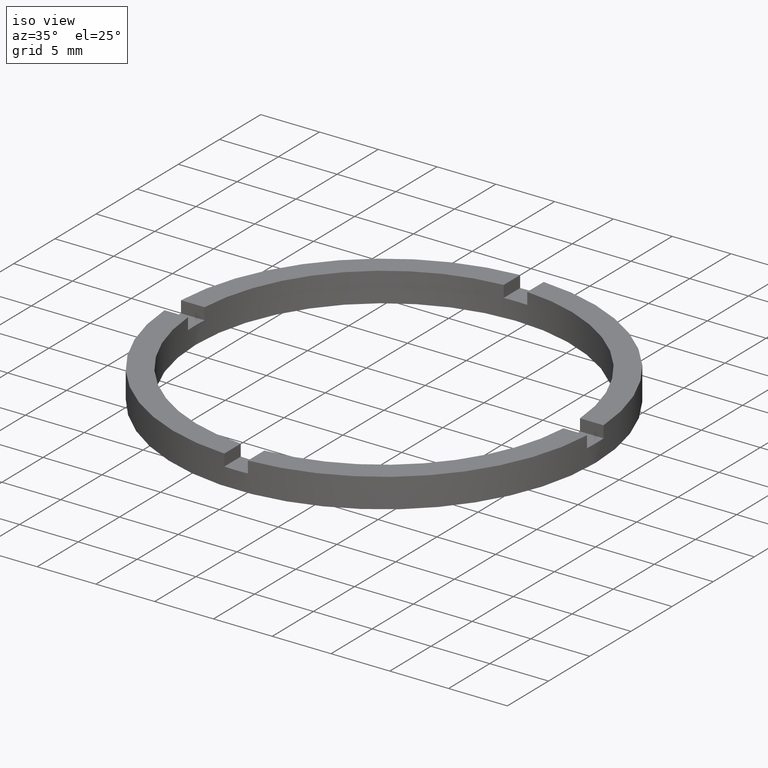
[diagram: clean part render]
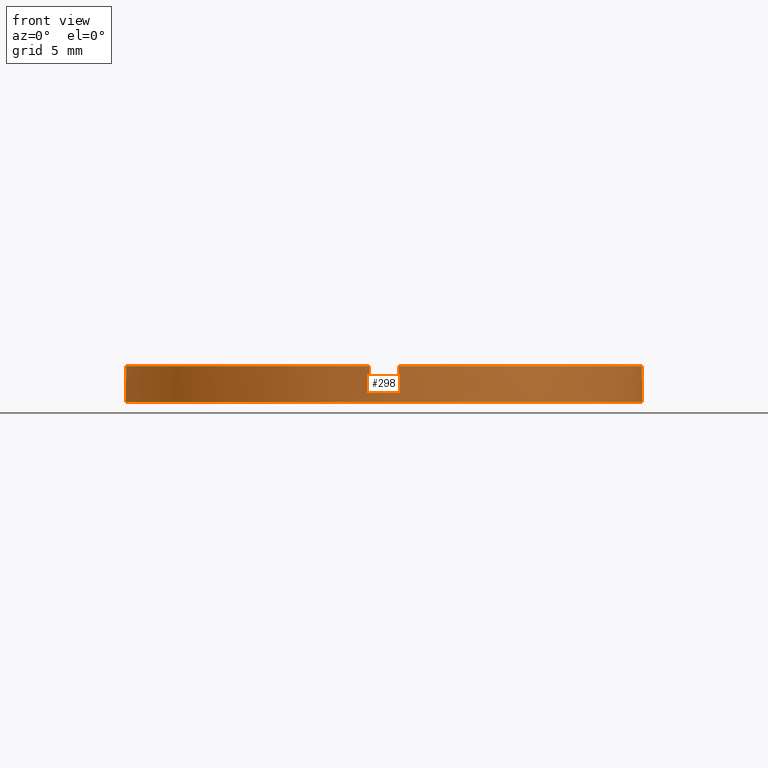
[diagram: tour spotlight — one face highlighted and labeled with its STEP entity id]
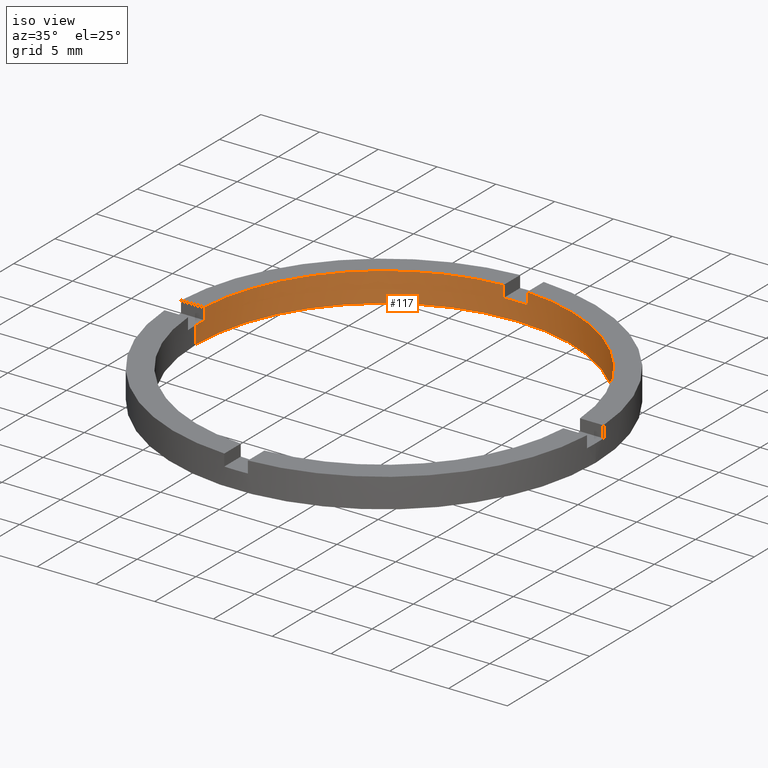
[diagram: tour spotlight — one face highlighted and labeled with its STEP entity id]
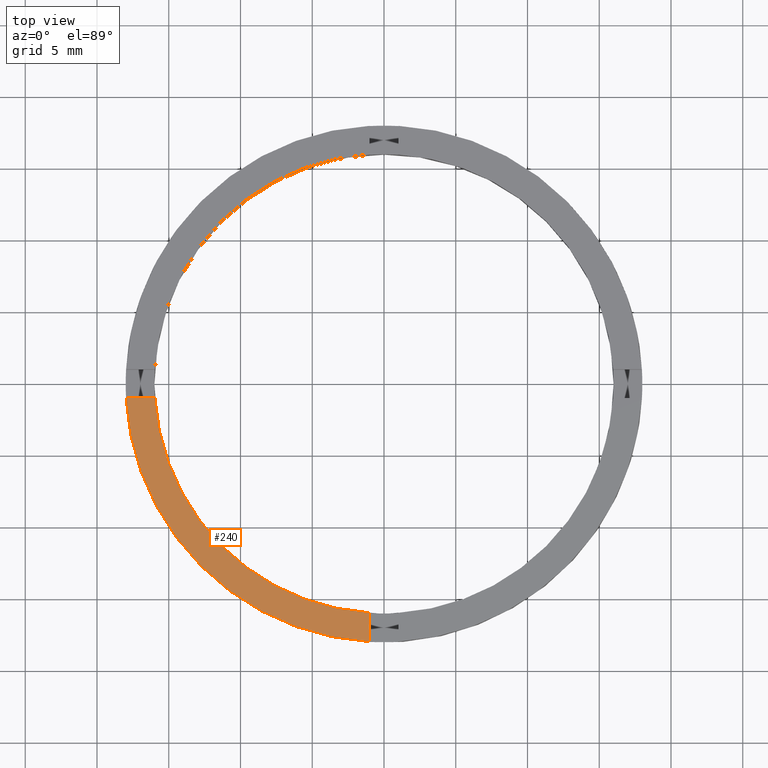
[diagram: tour spotlight — one face highlighted and labeled with its STEP entity id]
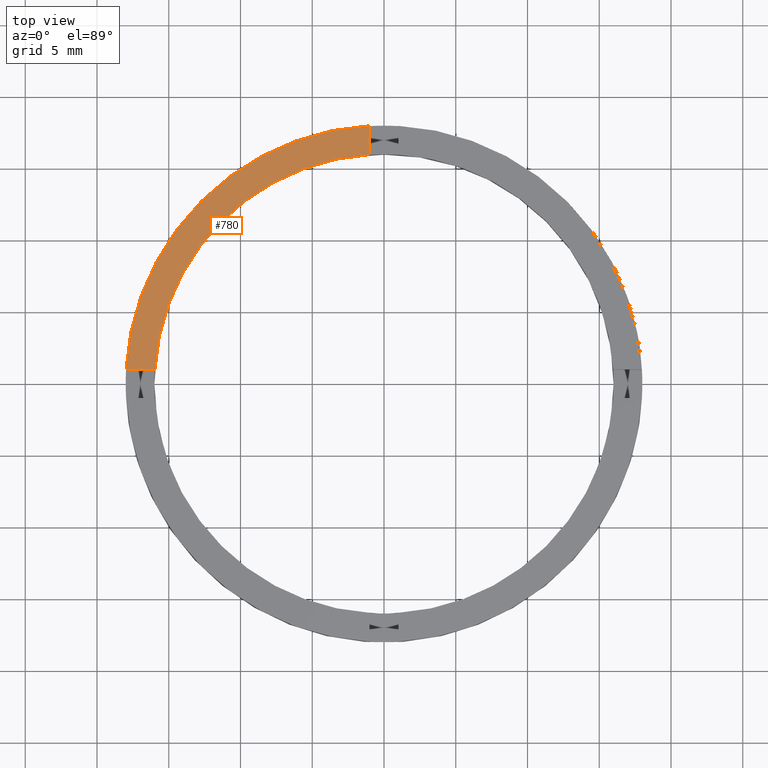
[diagram: tour spotlight — one face highlighted and labeled with its STEP entity id]
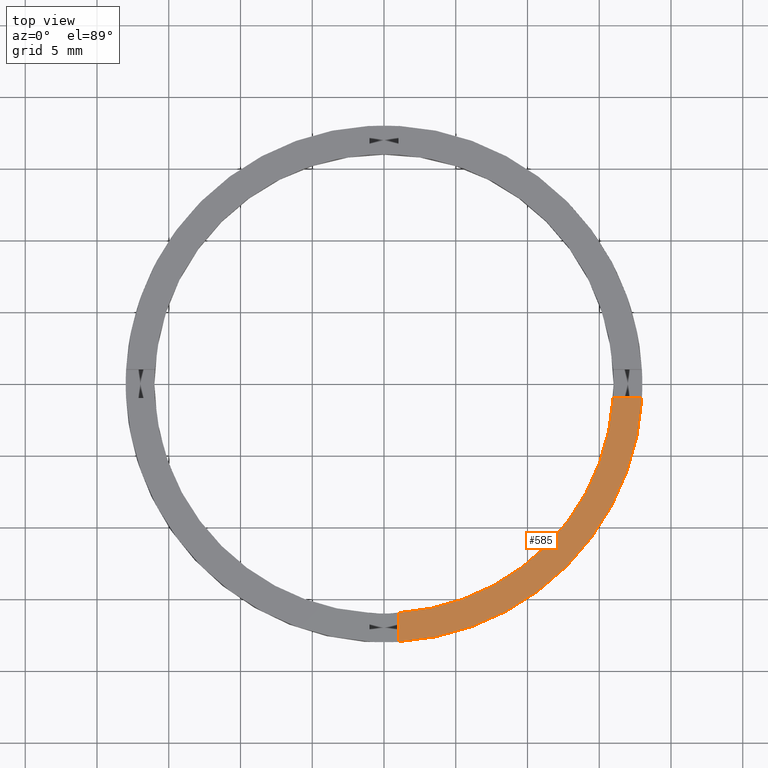
[diagram: tour spotlight — one face highlighted and labeled with its STEP entity id]
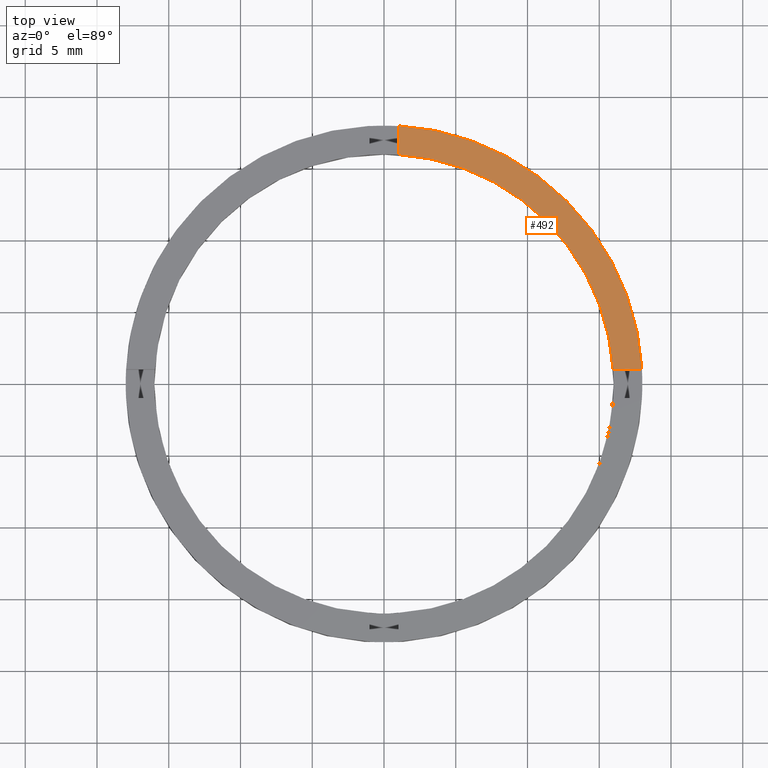
[diagram: tour spotlight — one face highlighted and labeled with its STEP entity id]
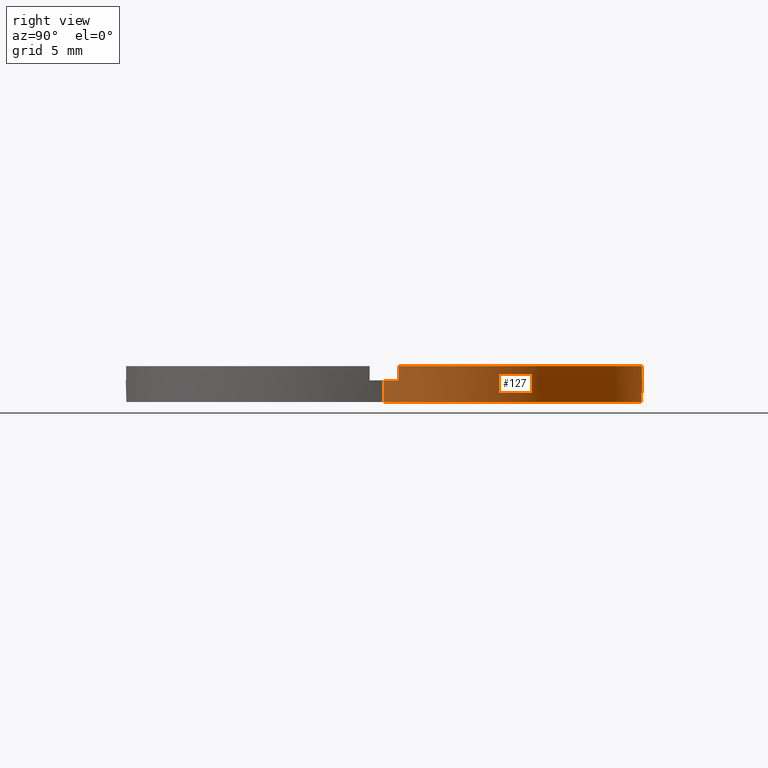
[diagram: tour spotlight — one face highlighted and labeled with its STEP entity id]
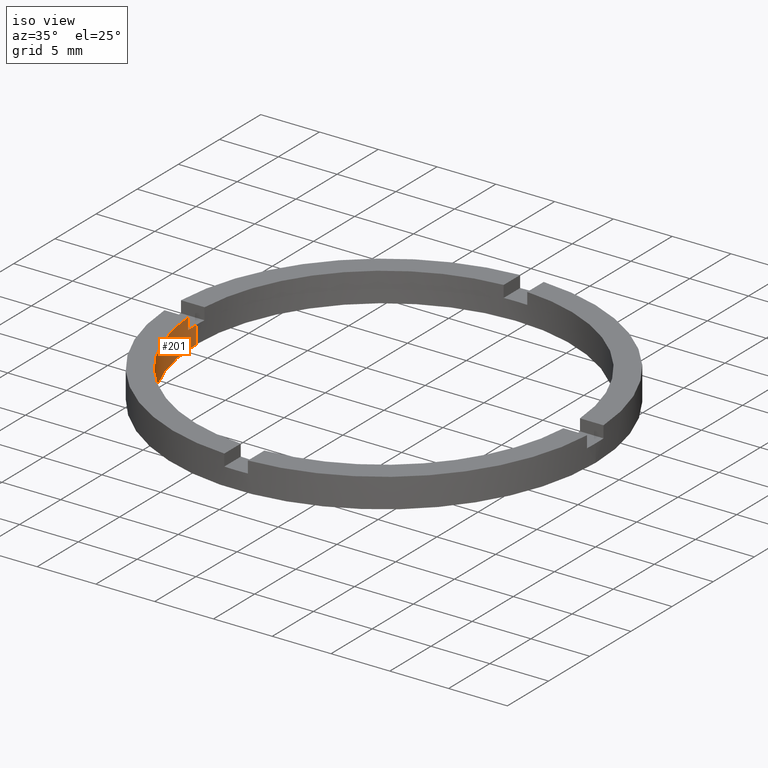
[diagram: tour spotlight — one face highlighted and labeled with its STEP entity id]
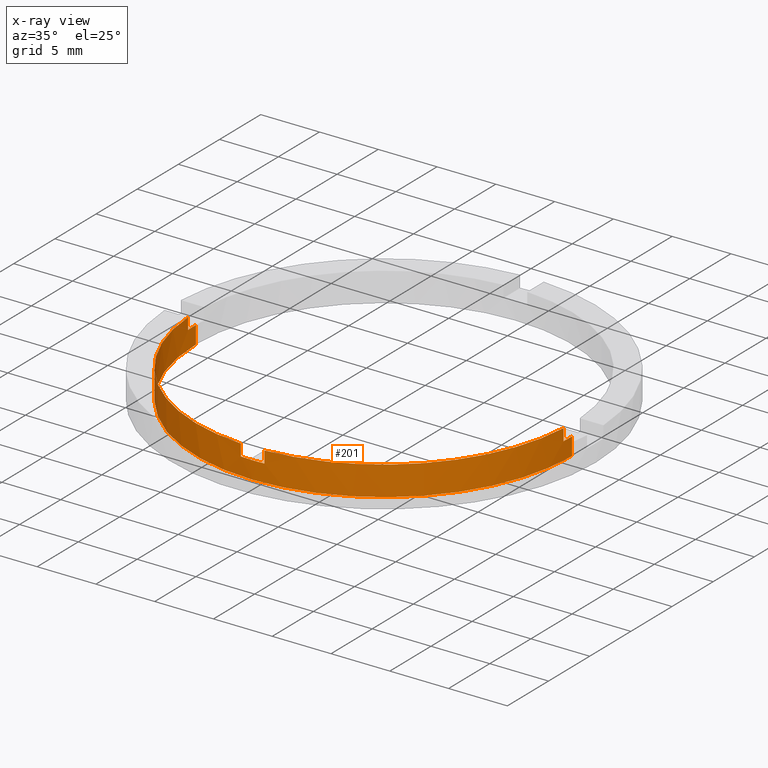
[diagram: x-ray of the same camera — body ghosted, this tour face saturated]
A machine part: a face-by-face anatomy tour. The part has 21 B-rep faces; the first image is the clean iso view, then the 8 largest visible faces are spotlighted one at a time (largest first), each with its STEP entity span.

Face 1 — front view, entity #298. In plain terms, the highlighted cylindrical surface (partial cylindrical patch) has radius 18 mm, axis along (-0, -0, -1).
Definition (entity closure, byte-faithful):
#1 = DIRECTION ( 'NONE',  ( 1.000000000000000000, 0.000000000000000000, 0.000000000000000000 ) ) ;
#9 = VERTEX_POINT ( 'NONE', #676 ) ;
#34 = EDGE_CURVE ( 'NONE', #514, #103, #307, .T. ) ;
#36 = CARTESIAN_POINT ( 'NONE',  ( 17.97220075561141783, -1.000000000000158762, 2.500000000000000000 ) ) ;
#45 = DIRECTION ( 'NONE',  ( -0.000000000000000000, -0.000000000000000000, -1.000000000000000000 ) ) ;
#46 = CIRCLE ( 'NONE', #409, 18.00000000000000000 ) ;
#51 = LINE ( 'NONE', #644, #561 ) ;
#53 = AXIS2_PLACEMENT_3D ( 'NONE', #665, #592, #1 ) ;
#57 = LINE ( 'NONE', #451, #322 ) ;
#63 = DIRECTION ( 'NONE',  ( 0.000000000000000000, 0.000000000000000000, 1.000000000000000000 ) ) ;
#64 = CARTESIAN_POINT ( 'NONE',  ( 0.000000000000000000, 0.000000000000000000, 2.500000000000000000 ) ) ;
#73 = VECTOR ( 'NONE', #423, 1000.000000000000000 ) ;
#75 = DIRECTION ( 'NONE',  ( -0.000000000000000000, 0.000000000000000000, 1.000000000000000000 ) ) ;
#85 = CIRCLE ( 'NONE', #53, 18.00000000000000000 ) ;
#102 = EDGE_CURVE ( 'NONE', #383, #215, #46, .T. ) ;
#103 = VERTEX_POINT ( 'NONE', #767 ) ;
#132 = ORIENTED_EDGE ( 'NONE', *, *, #34, .F. ) ;
#135 = VERTEX_POINT ( 'NONE', #36 ) ;
#161 = CARTESIAN_POINT ( 'NONE',  ( 18.00000000000000000, 2.204364238465235428E-15, 2.500000000000000000 ) ) ;
#182 = VERTEX_POINT ( 'NONE', #776 ) ;
#187 = ORIENTED_EDGE ( 'NONE', *, *, #287, .F. ) ;
#191 = ORIENTED_EDGE ( 'NONE', *, *, #305, .T. ) ;
#200 = CARTESIAN_POINT ( 'NONE',  ( -18.00000000000000000, 0.000000000000000000, 0.000000000000000000 ) ) ;
#207 = ORIENTED_EDGE ( 'NONE', *, *, #102, .T. ) ;
#215 = VERTEX_POINT ( 'NONE', #535 ) ;
#226 = EDGE_CURVE ( 'NONE', #369, #782, #302, .T. ) ;
#230 = DIRECTION ( 'NONE',  ( -0.000000000000000000, -0.000000000000000000, -1.000000000000000000 ) ) ;
#231 = CARTESIAN_POINT ( 'NONE',  ( -17.97220075561142849, -1.000000000000023981, 2.500000000000000000 ) ) ;
#241 = EDGE_CURVE ( 'NONE', #725, #782, #546, .T. ) ;
#261 = DIRECTION ( 'NONE',  ( -0.000000000000000000, -0.000000000000000000, -1.000000000000000000 ) ) ;
#271 = EDGE_CURVE ( 'NONE', #512, #215, #303, .T. ) ;
#273 = CARTESIAN_POINT ( 'NONE',  ( -17.97220075561142849, -1.000000000000023981, 1.500000000000000000 ) ) ;
#276 = CARTESIAN_POINT ( 'NONE',  ( 17.97220075561141783, -1.000000000000158762, 2.500000000000000000 ) ) ;
#287 = EDGE_CURVE ( 'NONE', #182, #135, #548, .T. ) ;
#293 = VECTOR ( 'NONE', #230, 1000.000000000000000 ) ;
#298 = ADVANCED_FACE ( 'NONE', ( #551 ), #566, .T. ) ;
#302 = CIRCLE ( 'NONE', #330, 18.00000000000000000 ) ;
#303 = LINE ( 'NONE', #161, #293 ) ;
#305 = EDGE_CURVE ( 'NONE', #182, #103, #51, .T. ) ;
#307 = CIRCLE ( 'NONE', #783, 18.00000000000000000 ) ;
#320 = LINE ( 'NONE', #530, #590 ) ;
#321 = DIRECTION ( 'NONE',  ( 0.000000000000000000, 0.000000000000000000, 1.000000000000000000 ) ) ;
#322 = VECTOR ( 'NONE', #321, 1000.000000000000000 ) ;
#330 = AXIS2_PLACEMENT_3D ( 'NONE', #449, #63, #498 ) ;
#335 = CARTESIAN_POINT ( 'NONE',  ( -17.97220075561142849, -1.000000000000023981, 2.500000000000000000 ) ) ;
#348 = CARTESIAN_POINT ( 'NONE',  ( 0.000000000000000000, 0.000000000000000000, 0.000000000000000000 ) ) ;
#369 = VERTEX_POINT ( 'NONE', #429 ) ;
#380 = ORIENTED_EDGE ( 'NONE', *, *, #736, .F. ) ;
#383 = VERTEX_POINT ( 'NONE', #200 ) ;
#394 = CARTESIAN_POINT ( 'NONE',  ( 0.000000000000000000, 0.000000000000000000, 2.500000000000000000 ) ) ;
#409 = AXIS2_PLACEMENT_3D ( 'NONE', #348, #412, #415 ) ;
#410 = EDGE_CURVE ( 'NONE', #454, #135, #589, .T. ) ;
#412 = DIRECTION ( 'NONE',  ( 0.000000000000000000, 0.000000000000000000, 1.000000000000000000 ) ) ;
#415 = DIRECTION ( 'NONE',  ( 1.000000000000000000, 0.000000000000000000, 0.000000000000000000 ) ) ;
#419 = AXIS2_PLACEMENT_3D ( 'NONE', #773, #45, #573 ) ;
#423 = DIRECTION ( 'NONE',  ( 0.000000000000000000, 0.000000000000000000, 1.000000000000000000 ) ) ;
#427 = DIRECTION ( 'NONE',  ( 0.000000000000000000, 0.000000000000000000, 1.000000000000000000 ) ) ;
#429 = CARTESIAN_POINT ( 'NONE',  ( -18.00000000000000000, 0.000000000000000000, 1.500000000000000000 ) ) ;
#439 = EDGE_CURVE ( 'NONE', #369, #383, #320, .T. ) ;
#449 = CARTESIAN_POINT ( 'NONE',  ( 0.000000000000000000, 0.000000000000000000, 1.500000000000000000 ) ) ;
#451 = CARTESIAN_POINT ( 'NONE',  ( -1.000000000000162315, -17.97220075561141783, 2.500000000000000000 ) ) ;
#454 = VERTEX_POINT ( 'NONE', #753 ) ;
#458 = CARTESIAN_POINT ( 'NONE',  ( -1.000000000000161871, -17.97220075561141428, 1.500000000000000000 ) ) ;
#467 = DIRECTION ( 'NONE',  ( 0.000000000000000000, 0.000000000000000000, 1.000000000000000000 ) ) ;
#485 = EDGE_CURVE ( 'NONE', #514, #9, #57, .T. ) ;
#498 = DIRECTION ( 'NONE',  ( 1.000000000000000000, 0.000000000000000000, 0.000000000000000000 ) ) ;
#502 = CARTESIAN_POINT ( 'NONE',  ( 18.00000000000000000, 2.204364238465235428E-15, 1.500000000000000000 ) ) ;
#503 = DIRECTION ( 'NONE',  ( -0.000000000000000000, -0.000000000000000000, -1.000000000000000000 ) ) ;
#508 = DIRECTION ( 'NONE',  ( 1.000000000000000000, 0.000000000000000000, 0.000000000000000000 ) ) ;
#512 = VERTEX_POINT ( 'NONE', #502 ) ;
#514 = VERTEX_POINT ( 'NONE', #458 ) ;
#529 = EDGE_CURVE ( 'NONE', #725, #9, #624, .T. ) ;
#530 = CARTESIAN_POINT ( 'NONE',  ( -18.00000000000000000, 0.000000000000000000, 2.500000000000000000 ) ) ;
#533 = VECTOR ( 'NONE', #261, 1000.000000000000000 ) ;
#535 = CARTESIAN_POINT ( 'NONE',  ( 18.00000000000000000, 2.204364238465235428E-15, 0.000000000000000000 ) ) ;
#543 = DIRECTION ( 'NONE',  ( 1.000000000000000000, 0.000000000000000000, 0.000000000000000000 ) ) ;
#546 = LINE ( 'NONE', #335, #533 ) ;
#548 = CIRCLE ( 'NONE', #766, 18.00000000000000000 ) ;
#551 = FACE_OUTER_BOUND ( 'NONE', #723, .T. ) ;
#561 = VECTOR ( 'NONE', #718, 1000.000000000000000 ) ;
#566 = CYLINDRICAL_SURFACE ( 'NONE', #419, 18.00000000000000000 ) ;
#573 = DIRECTION ( 'NONE',  ( -1.000000000000000000, 0.000000000000000000, 0.000000000000000000 ) ) ;
#589 = LINE ( 'NONE', #276, #73 ) ;
#590 = VECTOR ( 'NONE', #503, 1000.000000000000000 ) ;
#592 = DIRECTION ( 'NONE',  ( 0.000000000000000000, 0.000000000000000000, 1.000000000000000000 ) ) ;
#620 = ORIENTED_EDGE ( 'NONE', *, *, #410, .T. ) ;
#624 = CIRCLE ( 'NONE', #744, 18.00000000000000000 ) ;
#625 = ORIENTED_EDGE ( 'NONE', *, *, #439, .T. ) ;
#626 = ORIENTED_EDGE ( 'NONE', *, *, #485, .T. ) ;
#639 = ORIENTED_EDGE ( 'NONE', *, *, #271, .F. ) ;
#640 = ORIENTED_EDGE ( 'NONE', *, *, #241, .T. ) ;
#644 = CARTESIAN_POINT ( 'NONE',  ( 0.9999999999998377964, -17.97220075561143915, 2.500000000000000000 ) ) ;
#661 = ORIENTED_EDGE ( 'NONE', *, *, #226, .F. ) ;
#665 = CARTESIAN_POINT ( 'NONE',  ( 0.000000000000000000, 0.000000000000000000, 1.500000000000000000 ) ) ;
#676 = CARTESIAN_POINT ( 'NONE',  ( -1.000000000000161871, -17.97220075561141428, 2.500000000000000000 ) ) ;
#698 = ORIENTED_EDGE ( 'NONE', *, *, #529, .F. ) ;
#718 = DIRECTION ( 'NONE',  ( -0.000000000000000000, -0.000000000000000000, -1.000000000000000000 ) ) ;
#723 = EDGE_LOOP ( 'NONE', ( #639, #380, #620, #187, #191, #132, #626, #698, #640, #661, #625, #207 ) ) ;
#725 = VERTEX_POINT ( 'NONE', #231 ) ;
#736 = EDGE_CURVE ( 'NONE', #454, #512, #85, .T. ) ;
#744 = AXIS2_PLACEMENT_3D ( 'NONE', #64, #427, #543 ) ;
#749 = DIRECTION ( 'NONE',  ( 1.000000000000000000, 0.000000000000000000, 0.000000000000000000 ) ) ;
#753 = CARTESIAN_POINT ( 'NONE',  ( 17.97220075561141783, -1.000000000000158762, 1.500000000000000000 ) ) ;
#755 = CARTESIAN_POINT ( 'NONE',  ( 0.000000000000000000, 0.000000000000000000, 1.500000000000000000 ) ) ;
#766 = AXIS2_PLACEMENT_3D ( 'NONE', #394, #467, #508 ) ;
#767 = CARTESIAN_POINT ( 'NONE',  ( 0.9999999999998373523, -17.97220075561143560, 1.500000000000000000 ) ) ;
#773 = CARTESIAN_POINT ( 'NONE',  ( 0.000000000000000000, 0.000000000000000000, 2.500000000000000000 ) ) ;
#776 = CARTESIAN_POINT ( 'NONE',  ( 0.9999999999998373523, -17.97220075561143560, 2.500000000000000000 ) ) ;
#782 = VERTEX_POINT ( 'NONE', #273 ) ;
#783 = AXIS2_PLACEMENT_3D ( 'NONE', #755, #75, #749 ) ;

Face 2 — iso view, entity #117. In plain terms, the highlighted cylindrical surface (partial cylindrical patch) has radius 16 mm, axis along (-0, -0, -1).
Definition (entity closure, byte-faithful):
#5 = CARTESIAN_POINT ( 'NONE',  ( 16.00000000000000000, 1.959434878635765131E-15, 0.000000000000000000 ) ) ;
#10 = DIRECTION ( 'NONE',  ( -0.000000000000000000, -0.000000000000000000, -1.000000000000000000 ) ) ;
#12 = DIRECTION ( 'NONE',  ( 0.000000000000000000, 0.000000000000000000, 1.000000000000000000 ) ) ;
#13 = EDGE_CURVE ( 'NONE', #641, #401, #542, .T. ) ;
#16 = VECTOR ( 'NONE', #223, 1000.000000000000000 ) ;
#28 = LINE ( 'NONE', #386, #16 ) ;
#40 = CIRCLE ( 'NONE', #87, 16.00000000000000000 ) ;
#41 = DIRECTION ( 'NONE',  ( 1.000000000000000000, 0.000000000000000000, 0.000000000000000000 ) ) ;
#55 = DIRECTION ( 'NONE',  ( -0.000000000000000000, -0.000000000000000000, -1.000000000000000000 ) ) ;
#61 = CARTESIAN_POINT ( 'NONE',  ( -1.000000000000024869, 15.96871942267130606, 1.500000000000000000 ) ) ;
#70 = CARTESIAN_POINT ( 'NONE',  ( 0.000000000000000000, 0.000000000000000000, 1.500000000000000000 ) ) ;
#74 = CARTESIAN_POINT ( 'NONE',  ( 0.9999999999999742428, 15.96871942267130962, 2.500000000000000000 ) ) ;
#87 = AXIS2_PLACEMENT_3D ( 'NONE', #490, #655, #232 ) ;
#97 = CARTESIAN_POINT ( 'NONE',  ( 15.96871942267132027, 0.9999999999998411271, 2.500000000000000000 ) ) ;
#98 = CARTESIAN_POINT ( 'NONE',  ( 15.96871942267132027, 0.9999999999998411271, 1.500000000000000000 ) ) ;
#101 = EDGE_CURVE ( 'NONE', #167, #509, #538, .T. ) ;
#105 = LINE ( 'NONE', #553, #603 ) ;
#112 = EDGE_CURVE ( 'NONE', #525, #629, #534, .T. ) ;
#117 = ADVANCED_FACE ( 'NONE', ( #544 ), #290, .F. ) ;
#120 = ORIENTED_EDGE ( 'NONE', *, *, #507, .F. ) ;
#128 = ORIENTED_EDGE ( 'NONE', *, *, #395, .T. ) ;
#130 = CARTESIAN_POINT ( 'NONE',  ( 0.000000000000000000, 0.000000000000000000, 1.500000000000000000 ) ) ;
#134 = VERTEX_POINT ( 'NONE', #647 ) ;
#157 = AXIS2_PLACEMENT_3D ( 'NONE', #269, #295, #41 ) ;
#167 = VERTEX_POINT ( 'NONE', #97 ) ;
#168 = EDGE_CURVE ( 'NONE', #134, #475, #40, .T. ) ;
#170 = ORIENTED_EDGE ( 'NONE', *, *, #13, .T. ) ;
#172 = CARTESIAN_POINT ( 'NONE',  ( -15.96871942267131317, 0.9999999999999763522, 2.500000000000000000 ) ) ;
#189 = ORIENTED_EDGE ( 'NONE', *, *, #565, .F. ) ;
#196 = CARTESIAN_POINT ( 'NONE',  ( 0.000000000000000000, 0.000000000000000000, 0.000000000000000000 ) ) ;
#217 = VERTEX_POINT ( 'NONE', #437 ) ;
#220 = AXIS2_PLACEMENT_3D ( 'NONE', #196, #528, #672 ) ;
#221 = ORIENTED_EDGE ( 'NONE', *, *, #168, .T. ) ;
#223 = DIRECTION ( 'NONE',  ( -0.000000000000000000, -0.000000000000000000, -1.000000000000000000 ) ) ;
#232 = DIRECTION ( 'NONE',  ( 1.000000000000000000, 0.000000000000000000, 0.000000000000000000 ) ) ;
#234 = DIRECTION ( 'NONE',  ( 0.000000000000000000, 0.000000000000000000, 1.000000000000000000 ) ) ;
#236 = DIRECTION ( 'NONE',  ( 0.000000000000000000, 0.000000000000000000, 1.000000000000000000 ) ) ;
#258 = CARTESIAN_POINT ( 'NONE',  ( -1.000000000000025313, 15.96871942267130962, 2.500000000000000000 ) ) ;
#262 = EDGE_CURVE ( 'NONE', #167, #401, #28, .T. ) ;
#269 = CARTESIAN_POINT ( 'NONE',  ( 0.000000000000000000, 0.000000000000000000, 1.500000000000000000 ) ) ;
#288 = DIRECTION ( 'NONE',  ( -0.000000000000000000, -0.000000000000000000, -1.000000000000000000 ) ) ;
#290 = CYLINDRICAL_SURFACE ( 'NONE', #352, 16.00000000000000000 ) ;
#295 = DIRECTION ( 'NONE',  ( 0.000000000000000000, -0.000000000000000000, 1.000000000000000000 ) ) ;
#296 = AXIS2_PLACEMENT_3D ( 'NONE', #130, #236, #349 ) ;
#317 = VECTOR ( 'NONE', #234, 1000.000000000000000 ) ;
#327 = LINE ( 'NONE', #258, #578 ) ;
#329 = CIRCLE ( 'NONE', #296, 16.00000000000000000 ) ;
#334 = EDGE_CURVE ( 'NONE', #719, #475, #562, .T. ) ;
#344 = VECTOR ( 'NONE', #10, 1000.000000000000000 ) ;
#349 = DIRECTION ( 'NONE',  ( 1.000000000000000000, 0.000000000000000000, 0.000000000000000000 ) ) ;
#352 = AXIS2_PLACEMENT_3D ( 'NONE', #738, #288, #426 ) ;
#373 = CARTESIAN_POINT ( 'NONE',  ( -16.00000000000000000, 0.000000000000000000, 2.500000000000000000 ) ) ;
#377 = DIRECTION ( 'NONE',  ( -0.000000000000000000, -0.000000000000000000, -1.000000000000000000 ) ) ;
#386 = CARTESIAN_POINT ( 'NONE',  ( 15.96871942267132027, 0.9999999999998411271, 2.500000000000000000 ) ) ;
#392 = ORIENTED_EDGE ( 'NONE', *, *, #575, .T. ) ;
#395 = EDGE_CURVE ( 'NONE', #719, #516, #329, .T. ) ;
#399 = VECTOR ( 'NONE', #55, 1000.000000000000000 ) ;
#401 = VERTEX_POINT ( 'NONE', #98 ) ;
#404 = EDGE_LOOP ( 'NONE', ( #634, #170, #633, #483, #189, #479, #120, #221, #691, #128, #392, #478 ) ) ;
#426 = DIRECTION ( 'NONE',  ( -1.000000000000000000, 0.000000000000000000, 0.000000000000000000 ) ) ;
#437 = CARTESIAN_POINT ( 'NONE',  ( -16.00000000000000000, 0.000000000000000000, 0.000000000000000000 ) ) ;
#475 = VERTEX_POINT ( 'NONE', #748 ) ;
#478 = ORIENTED_EDGE ( 'NONE', *, *, #759, .F. ) ;
#479 = ORIENTED_EDGE ( 'NONE', *, *, #112, .T. ) ;
#483 = ORIENTED_EDGE ( 'NONE', *, *, #101, .T. ) ;
#490 = CARTESIAN_POINT ( 'NONE',  ( 0.000000000000000000, 0.000000000000000000, 2.500000000000000000 ) ) ;
#499 = CARTESIAN_POINT ( 'NONE',  ( 0.9999999999999742428, 15.96871942267130962, 1.500000000000000000 ) ) ;
#507 = EDGE_CURVE ( 'NONE', #134, #629, #327, .T. ) ;
#509 = VERTEX_POINT ( 'NONE', #74 ) ;
#516 = VERTEX_POINT ( 'NONE', #611 ) ;
#523 = AXIS2_PLACEMENT_3D ( 'NONE', #586, #576, #580 ) ;
#525 = VERTEX_POINT ( 'NONE', #499 ) ;
#527 = VERTEX_POINT ( 'NONE', #5 ) ;
#528 = DIRECTION ( 'NONE',  ( 0.000000000000000000, 0.000000000000000000, 1.000000000000000000 ) ) ;
#534 = CIRCLE ( 'NONE', #157, 16.00000000000000000 ) ;
#538 = CIRCLE ( 'NONE', #523, 16.00000000000000000 ) ;
#539 = DIRECTION ( 'NONE',  ( 1.000000000000000000, 0.000000000000000000, 0.000000000000000000 ) ) ;
#542 = CIRCLE ( 'NONE', #720, 16.00000000000000000 ) ;
#544 = FACE_OUTER_BOUND ( 'NONE', #404, .T. ) ;
#553 = CARTESIAN_POINT ( 'NONE',  ( 0.9999999999999746869, 15.96871942267131317, 2.500000000000000000 ) ) ;
#562 = LINE ( 'NONE', #172, #317 ) ;
#565 = EDGE_CURVE ( 'NONE', #525, #509, #105, .T. ) ;
#575 = EDGE_CURVE ( 'NONE', #516, #217, #601, .T. ) ;
#576 = DIRECTION ( 'NONE',  ( 0.000000000000000000, 0.000000000000000000, 1.000000000000000000 ) ) ;
#578 = VECTOR ( 'NONE', #377, 1000.000000000000000 ) ;
#580 = DIRECTION ( 'NONE',  ( 1.000000000000000000, 0.000000000000000000, 0.000000000000000000 ) ) ;
#586 = CARTESIAN_POINT ( 'NONE',  ( 0.000000000000000000, 0.000000000000000000, 2.500000000000000000 ) ) ;
#601 = LINE ( 'NONE', #373, #344 ) ;
#603 = VECTOR ( 'NONE', #692, 1000.000000000000000 ) ;
#611 = CARTESIAN_POINT ( 'NONE',  ( -16.00000000000000000, 0.000000000000000000, 1.500000000000000000 ) ) ;
#616 = CIRCLE ( 'NONE', #220, 16.00000000000000000 ) ;
#629 = VERTEX_POINT ( 'NONE', #61 ) ;
#633 = ORIENTED_EDGE ( 'NONE', *, *, #262, .F. ) ;
#634 = ORIENTED_EDGE ( 'NONE', *, *, #762, .F. ) ;
#641 = VERTEX_POINT ( 'NONE', #678 ) ;
#647 = CARTESIAN_POINT ( 'NONE',  ( -1.000000000000024869, 15.96871942267130606, 2.500000000000000000 ) ) ;
#651 = LINE ( 'NONE', #739, #399 ) ;
#655 = DIRECTION ( 'NONE',  ( 0.000000000000000000, 0.000000000000000000, 1.000000000000000000 ) ) ;
#672 = DIRECTION ( 'NONE',  ( 1.000000000000000000, 0.000000000000000000, 0.000000000000000000 ) ) ;
#678 = CARTESIAN_POINT ( 'NONE',  ( 16.00000000000000000, 1.959434878635765131E-15, 1.500000000000000000 ) ) ;
#682 = CARTESIAN_POINT ( 'NONE',  ( -15.96871942267131317, 0.9999999999999763522, 1.500000000000000000 ) ) ;
#691 = ORIENTED_EDGE ( 'NONE', *, *, #334, .F. ) ;
#692 = DIRECTION ( 'NONE',  ( 0.000000000000000000, 0.000000000000000000, 1.000000000000000000 ) ) ;
#719 = VERTEX_POINT ( 'NONE', #682 ) ;
#720 = AXIS2_PLACEMENT_3D ( 'NONE', #70, #12, #539 ) ;
#738 = CARTESIAN_POINT ( 'NONE',  ( 0.000000000000000000, 0.000000000000000000, 2.500000000000000000 ) ) ;
#739 = CARTESIAN_POINT ( 'NONE',  ( 16.00000000000000000, 1.959434878635765131E-15, 2.500000000000000000 ) ) ;
#748 = CARTESIAN_POINT ( 'NONE',  ( -15.96871942267131317, 0.9999999999999763522, 2.500000000000000000 ) ) ;
#759 = EDGE_CURVE ( 'NONE', #527, #217, #616, .T. ) ;
#762 = EDGE_CURVE ( 'NONE', #641, #527, #651, .T. ) ;

Face 3 — top view, entity #240. In plain terms, the highlighted planar face has unit normal (0, 0, 1).
Definition (entity closure, byte-faithful):
#9 = VERTEX_POINT ( 'NONE', #676 ) ;
#15 = CARTESIAN_POINT ( 'NONE',  ( 0.000000000000000000, 0.000000000000000000, 2.500000000000000000 ) ) ;
#26 = DIRECTION ( 'NONE',  ( 0.000000000000000000, 0.000000000000000000, 1.000000000000000000 ) ) ;
#64 = CARTESIAN_POINT ( 'NONE',  ( 0.000000000000000000, 0.000000000000000000, 2.500000000000000000 ) ) ;
#65 = CARTESIAN_POINT ( 'NONE',  ( -1.000000000000162093, -15.96871942267129718, 2.500000000000000000 ) ) ;
#76 = CARTESIAN_POINT ( 'NONE',  ( -15.96871942267130962, -1.000000000000023759, 2.500000000000000000 ) ) ;
#84 = CARTESIAN_POINT ( 'NONE',  ( -8.000000000000184741, -1.000000000000022204, 2.500000000000000000 ) ) ;
#91 = DIRECTION ( 'NONE',  ( 0.000000000000000000, 0.000000000000000000, 1.000000000000000000 ) ) ;
#119 = CARTESIAN_POINT ( 'NONE',  ( -1.000000000000163425, -8.000000000000179412, 2.500000000000000000 ) ) ;
#129 = EDGE_CURVE ( 'NONE', #704, #452, #311, .T. ) ;
#155 = DIRECTION ( 'NONE',  ( 1.000000000000000000, 1.734723475976806848E-16, -0.000000000000000000 ) ) ;
#165 = AXIS2_PLACEMENT_3D ( 'NONE', #15, #26, #407 ) ;
#199 = AXIS2_PLACEMENT_3D ( 'NONE', #743, #91, #484 ) ;
#210 = PLANE ( 'NONE',  #165 ) ;
#231 = CARTESIAN_POINT ( 'NONE',  ( -17.97220075561142849, -1.000000000000023981, 2.500000000000000000 ) ) ;
#240 = ADVANCED_FACE ( 'NONE', ( #294 ), #210, .T. ) ;
#263 = ORIENTED_EDGE ( 'NONE', *, *, #529, .T. ) ;
#294 = FACE_OUTER_BOUND ( 'NONE', #366, .T. ) ;
#311 = CIRCLE ( 'NONE', #199, 16.00000000000000000 ) ;
#355 = VECTOR ( 'NONE', #745, 1000.000000000000000 ) ;
#366 = EDGE_LOOP ( 'NONE', ( #368, #646, #717, #263 ) ) ;
#368 = ORIENTED_EDGE ( 'NONE', *, *, #758, .F. ) ;
#407 = DIRECTION ( 'NONE',  ( 1.000000000000000000, 0.000000000000000000, -0.000000000000000000 ) ) ;
#427 = DIRECTION ( 'NONE',  ( 0.000000000000000000, 0.000000000000000000, 1.000000000000000000 ) ) ;
#452 = VERTEX_POINT ( 'NONE', #65 ) ;
#484 = DIRECTION ( 'NONE',  ( 1.000000000000000000, 0.000000000000000000, 0.000000000000000000 ) ) ;
#529 = EDGE_CURVE ( 'NONE', #725, #9, #624, .T. ) ;
#543 = DIRECTION ( 'NONE',  ( 1.000000000000000000, 0.000000000000000000, 0.000000000000000000 ) ) ;
#557 = EDGE_CURVE ( 'NONE', #725, #704, #593, .T. ) ;
#593 = LINE ( 'NONE', #84, #612 ) ;
#606 = LINE ( 'NONE', #119, #355 ) ;
#612 = VECTOR ( 'NONE', #155, 1000.000000000000000 ) ;
#624 = CIRCLE ( 'NONE', #744, 18.00000000000000000 ) ;
#646 = ORIENTED_EDGE ( 'NONE', *, *, #129, .F. ) ;
#676 = CARTESIAN_POINT ( 'NONE',  ( -1.000000000000161871, -17.97220075561141428, 2.500000000000000000 ) ) ;
#704 = VERTEX_POINT ( 'NONE', #76 ) ;
#717 = ORIENTED_EDGE ( 'NONE', *, *, #557, .F. ) ;
#725 = VERTEX_POINT ( 'NONE', #231 ) ;
#743 = CARTESIAN_POINT ( 'NONE',  ( 0.000000000000000000, 0.000000000000000000, 2.500000000000000000 ) ) ;
#744 = AXIS2_PLACEMENT_3D ( 'NONE', #64, #427, #543 ) ;
#745 = DIRECTION ( 'NONE',  ( 1.301042606982605074E-16, -1.000000000000000000, 0.000000000000000000 ) ) ;
#758 = EDGE_CURVE ( 'NONE', #452, #9, #606, .T. ) ;

Face 4 — top view, entity #780. In plain terms, the highlighted planar face has unit normal (0, 0, 1).
Definition (entity closure, byte-faithful):
#14 = LINE ( 'NONE', #722, #25 ) ;
#25 = VECTOR ( 'NONE', #714, 1000.000000000000000 ) ;
#39 = EDGE_LOOP ( 'NONE', ( #194, #733, #660, #686 ) ) ;
#40 = CIRCLE ( 'NONE', #87, 16.00000000000000000 ) ;
#72 = CARTESIAN_POINT ( 'NONE',  ( -1.000000000000024869, 17.97220075561142494, 2.500000000000000000 ) ) ;
#87 = AXIS2_PLACEMENT_3D ( 'NONE', #490, #655, #232 ) ;
#96 = CIRCLE ( 'NONE', #545, 18.00000000000000000 ) ;
#110 = FACE_OUTER_BOUND ( 'NONE', #39, .T. ) ;
#134 = VERTEX_POINT ( 'NONE', #647 ) ;
#158 = CARTESIAN_POINT ( 'NONE',  ( 0.000000000000000000, 0.000000000000000000, 2.500000000000000000 ) ) ;
#159 = EDGE_CURVE ( 'NONE', #475, #729, #14, .T. ) ;
#168 = EDGE_CURVE ( 'NONE', #134, #475, #40, .T. ) ;
#194 = ORIENTED_EDGE ( 'NONE', *, *, #275, .F. ) ;
#229 = DIRECTION ( 'NONE',  ( 1.000000000000000000, 0.000000000000000000, -0.000000000000000000 ) ) ;
#232 = DIRECTION ( 'NONE',  ( 1.000000000000000000, 0.000000000000000000, 0.000000000000000000 ) ) ;
#257 = CARTESIAN_POINT ( 'NONE',  ( -1.000000000000025313, 7.999999999999998224, 2.500000000000000000 ) ) ;
#259 = CARTESIAN_POINT ( 'NONE',  ( 0.000000000000000000, 0.000000000000000000, 2.500000000000000000 ) ) ;
#267 = DIRECTION ( 'NONE',  ( -0.000000000000000000, -1.000000000000000000, -0.000000000000000000 ) ) ;
#275 = EDGE_CURVE ( 'NONE', #662, #134, #292, .T. ) ;
#292 = LINE ( 'NONE', #257, #308 ) ;
#308 = VECTOR ( 'NONE', #267, 1000.000000000000000 ) ;
#372 = CARTESIAN_POINT ( 'NONE',  ( -17.97220075561142849, 0.9999999999999761302, 2.500000000000000000 ) ) ;
#462 = DIRECTION ( 'NONE',  ( 1.000000000000000000, 0.000000000000000000, 0.000000000000000000 ) ) ;
#475 = VERTEX_POINT ( 'NONE', #748 ) ;
#490 = CARTESIAN_POINT ( 'NONE',  ( 0.000000000000000000, 0.000000000000000000, 2.500000000000000000 ) ) ;
#545 = AXIS2_PLACEMENT_3D ( 'NONE', #259, #763, #462 ) ;
#647 = CARTESIAN_POINT ( 'NONE',  ( -1.000000000000024869, 15.96871942267130606, 2.500000000000000000 ) ) ;
#655 = DIRECTION ( 'NONE',  ( 0.000000000000000000, 0.000000000000000000, 1.000000000000000000 ) ) ;
#660 = ORIENTED_EDGE ( 'NONE', *, *, #159, .F. ) ;
#662 = VERTEX_POINT ( 'NONE', #72 ) ;
#686 = ORIENTED_EDGE ( 'NONE', *, *, #168, .F. ) ;
#709 = DIRECTION ( 'NONE',  ( 0.000000000000000000, 0.000000000000000000, 1.000000000000000000 ) ) ;
#710 = EDGE_CURVE ( 'NONE', #662, #729, #96, .T. ) ;
#714 = DIRECTION ( 'NONE',  ( -1.000000000000000000, -1.734723475976806848E-16, 0.000000000000000000 ) ) ;
#722 = CARTESIAN_POINT ( 'NONE',  ( -8.000000000000184741, 0.9999999999999779066, 2.500000000000000000 ) ) ;
#729 = VERTEX_POINT ( 'NONE', #372 ) ;
#732 = PLANE ( 'NONE',  #754 ) ;
#733 = ORIENTED_EDGE ( 'NONE', *, *, #710, .T. ) ;
#748 = CARTESIAN_POINT ( 'NONE',  ( -15.96871942267131317, 0.9999999999999763522, 2.500000000000000000 ) ) ;
#754 = AXIS2_PLACEMENT_3D ( 'NONE', #158, #709, #229 ) ;
#763 = DIRECTION ( 'NONE',  ( 0.000000000000000000, 0.000000000000000000, 1.000000000000000000 ) ) ;
#780 = ADVANCED_FACE ( 'NONE', ( #110 ), #732, .T. ) ;

Face 5 — top view, entity #585. In plain terms, the highlighted planar face has unit normal (0, 0, 1).
Definition (entity closure, byte-faithful):
#29 = CIRCLE ( 'NONE', #466, 16.00000000000000000 ) ;
#36 = CARTESIAN_POINT ( 'NONE',  ( 17.97220075561141783, -1.000000000000158762, 2.500000000000000000 ) ) ;
#77 = FACE_OUTER_BOUND ( 'NONE', #376, .T. ) ;
#78 = AXIS2_PLACEMENT_3D ( 'NONE', #202, #142, #365 ) ;
#80 = DIRECTION ( 'NONE',  ( 0.000000000000000000, 0.000000000000000000, 1.000000000000000000 ) ) ;
#100 = ORIENTED_EDGE ( 'NONE', *, *, #617, .F. ) ;
#125 = PLANE ( 'NONE',  #78 ) ;
#135 = VERTEX_POINT ( 'NONE', #36 ) ;
#142 = DIRECTION ( 'NONE',  ( 0.000000000000000000, 0.000000000000000000, 1.000000000000000000 ) ) ;
#153 = DIRECTION ( 'NONE',  ( 1.000000000000000000, 0.000000000000000000, 0.000000000000000000 ) ) ;
#154 = ORIENTED_EDGE ( 'NONE', *, *, #594, .F. ) ;
#169 = ORIENTED_EDGE ( 'NONE', *, *, #287, .T. ) ;
#182 = VERTEX_POINT ( 'NONE', #776 ) ;
#202 = CARTESIAN_POINT ( 'NONE',  ( 0.000000000000000000, 0.000000000000000000, 2.500000000000000000 ) ) ;
#208 = CARTESIAN_POINT ( 'NONE',  ( 7.999999999999992895, -1.000000000000159206, 2.500000000000000000 ) ) ;
#216 = DIRECTION ( 'NONE',  ( -1.301042606982605074E-16, 1.000000000000000000, -0.000000000000000000 ) ) ;
#287 = EDGE_CURVE ( 'NONE', #182, #135, #548, .T. ) ;
#289 = EDGE_CURVE ( 'NONE', #554, #480, #29, .T. ) ;
#304 = DIRECTION ( 'NONE',  ( 1.000000000000000000, 4.336808689942017120E-17, 0.000000000000000000 ) ) ;
#313 = CARTESIAN_POINT ( 'NONE',  ( 15.96871942267130429, -1.000000000000158984, 2.500000000000000000 ) ) ;
#337 = VECTOR ( 'NONE', #216, 1000.000000000000000 ) ;
#353 = LINE ( 'NONE', #208, #602 ) ;
#365 = DIRECTION ( 'NONE',  ( 1.000000000000000000, 0.000000000000000000, -0.000000000000000000 ) ) ;
#376 = EDGE_LOOP ( 'NONE', ( #154, #664, #100, #169 ) ) ;
#394 = CARTESIAN_POINT ( 'NONE',  ( 0.000000000000000000, 0.000000000000000000, 2.500000000000000000 ) ) ;
#446 = CARTESIAN_POINT ( 'NONE',  ( 0.9999999999998365752, -8.000000000000179412, 2.500000000000000000 ) ) ;
#466 = AXIS2_PLACEMENT_3D ( 'NONE', #552, #80, #153 ) ;
#467 = DIRECTION ( 'NONE',  ( 0.000000000000000000, 0.000000000000000000, 1.000000000000000000 ) ) ;
#473 = CARTESIAN_POINT ( 'NONE',  ( 0.9999999999998371303, -15.96871942267132027, 2.500000000000000000 ) ) ;
#480 = VERTEX_POINT ( 'NONE', #313 ) ;
#508 = DIRECTION ( 'NONE',  ( 1.000000000000000000, 0.000000000000000000, 0.000000000000000000 ) ) ;
#548 = CIRCLE ( 'NONE', #766, 18.00000000000000000 ) ;
#552 = CARTESIAN_POINT ( 'NONE',  ( 0.000000000000000000, 0.000000000000000000, 2.500000000000000000 ) ) ;
#554 = VERTEX_POINT ( 'NONE', #473 ) ;
#585 = ADVANCED_FACE ( 'NONE', ( #77 ), #125, .T. ) ;
#594 = EDGE_CURVE ( 'NONE', #480, #135, #353, .T. ) ;
#602 = VECTOR ( 'NONE', #304, 1000.000000000000000 ) ;
#617 = EDGE_CURVE ( 'NONE', #182, #554, #619, .T. ) ;
#619 = LINE ( 'NONE', #446, #337 ) ;
#664 = ORIENTED_EDGE ( 'NONE', *, *, #289, .F. ) ;
#766 = AXIS2_PLACEMENT_3D ( 'NONE', #394, #467, #508 ) ;
#776 = CARTESIAN_POINT ( 'NONE',  ( 0.9999999999998373523, -17.97220075561143560, 2.500000000000000000 ) ) ;

Face 6 — top view, entity #492. In plain terms, the highlighted planar face has unit normal (0, 0, 1).
Definition (entity closure, byte-faithful):
#8 = DIRECTION ( 'NONE',  ( -1.000000000000000000, -4.336808689942017120E-17, -0.000000000000000000 ) ) ;
#27 = CIRCLE ( 'NONE', #139, 18.00000000000000000 ) ;
#74 = CARTESIAN_POINT ( 'NONE',  ( 0.9999999999999742428, 15.96871942267130962, 2.500000000000000000 ) ) ;
#97 = CARTESIAN_POINT ( 'NONE',  ( 15.96871942267132027, 0.9999999999998411271, 2.500000000000000000 ) ) ;
#101 = EDGE_CURVE ( 'NONE', #167, #509, #538, .T. ) ;
#123 = AXIS2_PLACEMENT_3D ( 'NONE', #752, #684, #496 ) ;
#139 = AXIS2_PLACEMENT_3D ( 'NONE', #326, #402, #610 ) ;
#146 = ORIENTED_EDGE ( 'NONE', *, *, #455, .F. ) ;
#167 = VERTEX_POINT ( 'NONE', #97 ) ;
#212 = VERTEX_POINT ( 'NONE', #360 ) ;
#213 = DIRECTION ( 'NONE',  ( 0.000000000000000000, 1.000000000000000000, 0.000000000000000000 ) ) ;
#244 = EDGE_LOOP ( 'NONE', ( #146, #706, #432, #677 ) ) ;
#254 = CARTESIAN_POINT ( 'NONE',  ( 7.999999999999992895, 0.9999999999998409050, 2.500000000000000000 ) ) ;
#255 = EDGE_CURVE ( 'NONE', #481, #212, #27, .T. ) ;
#318 = VECTOR ( 'NONE', #8, 1000.000000000000000 ) ;
#325 = LINE ( 'NONE', #605, #333 ) ;
#326 = CARTESIAN_POINT ( 'NONE',  ( 0.000000000000000000, 0.000000000000000000, 2.500000000000000000 ) ) ;
#333 = VECTOR ( 'NONE', #213, 1000.000000000000000 ) ;
#360 = CARTESIAN_POINT ( 'NONE',  ( 0.9999999999999742428, 17.97220075561142494, 2.500000000000000000 ) ) ;
#370 = CARTESIAN_POINT ( 'NONE',  ( 17.97220075561143560, 0.9999999999998412381, 2.500000000000000000 ) ) ;
#402 = DIRECTION ( 'NONE',  ( 0.000000000000000000, 0.000000000000000000, 1.000000000000000000 ) ) ;
#432 = ORIENTED_EDGE ( 'NONE', *, *, #457, .F. ) ;
#455 = EDGE_CURVE ( 'NONE', #509, #212, #325, .T. ) ;
#457 = EDGE_CURVE ( 'NONE', #481, #167, #563, .T. ) ;
#481 = VERTEX_POINT ( 'NONE', #370 ) ;
#492 = ADVANCED_FACE ( 'NONE', ( #574 ), #740, .T. ) ;
#496 = DIRECTION ( 'NONE',  ( 1.000000000000000000, 0.000000000000000000, -0.000000000000000000 ) ) ;
#509 = VERTEX_POINT ( 'NONE', #74 ) ;
#523 = AXIS2_PLACEMENT_3D ( 'NONE', #586, #576, #580 ) ;
#538 = CIRCLE ( 'NONE', #523, 16.00000000000000000 ) ;
#563 = LINE ( 'NONE', #254, #318 ) ;
#574 = FACE_OUTER_BOUND ( 'NONE', #244, .T. ) ;
#576 = DIRECTION ( 'NONE',  ( 0.000000000000000000, 0.000000000000000000, 1.000000000000000000 ) ) ;
#580 = DIRECTION ( 'NONE',  ( 1.000000000000000000, 0.000000000000000000, 0.000000000000000000 ) ) ;
#586 = CARTESIAN_POINT ( 'NONE',  ( 0.000000000000000000, 0.000000000000000000, 2.500000000000000000 ) ) ;
#605 = CARTESIAN_POINT ( 'NONE',  ( 0.9999999999999746869, 7.999999999999998224, 2.500000000000000000 ) ) ;
#610 = DIRECTION ( 'NONE',  ( 1.000000000000000000, 0.000000000000000000, 0.000000000000000000 ) ) ;
#677 = ORIENTED_EDGE ( 'NONE', *, *, #255, .T. ) ;
#684 = DIRECTION ( 'NONE',  ( 0.000000000000000000, 0.000000000000000000, 1.000000000000000000 ) ) ;
#706 = ORIENTED_EDGE ( 'NONE', *, *, #101, .F. ) ;
#740 = PLANE ( 'NONE',  #123 ) ;
#752 = CARTESIAN_POINT ( 'NONE',  ( 0.000000000000000000, 0.000000000000000000, 2.500000000000000000 ) ) ;

Face 7 — right view, entity #127. In plain terms, the highlighted cylindrical surface (partial cylindrical patch) has radius 18 mm, axis along (-0, -0, -1).
Definition (entity closure, byte-faithful):
#4 = CARTESIAN_POINT ( 'NONE',  ( -17.97220075561142849, 0.9999999999999761302, 1.500000000000000000 ) ) ;
#27 = CIRCLE ( 'NONE', #139, 18.00000000000000000 ) ;
#32 = AXIS2_PLACEMENT_3D ( 'NONE', #486, #570, #345 ) ;
#38 = DIRECTION ( 'NONE',  ( -0.000000000000000000, -0.000000000000000000, -1.000000000000000000 ) ) ;
#49 = VECTOR ( 'NONE', #38, 1000.000000000000000 ) ;
#69 = CARTESIAN_POINT ( 'NONE',  ( -1.000000000000024869, 17.97220075561142494, 1.500000000000000000 ) ) ;
#72 = CARTESIAN_POINT ( 'NONE',  ( -1.000000000000024869, 17.97220075561142494, 2.500000000000000000 ) ) ;
#79 = CIRCLE ( 'NONE', #375, 18.00000000000000000 ) ;
#81 = CARTESIAN_POINT ( 'NONE',  ( -17.97220075561142849, 0.9999999999999761302, 2.500000000000000000 ) ) ;
#88 = DIRECTION ( 'NONE',  ( 0.000000000000000000, -0.000000000000000000, 1.000000000000000000 ) ) ;
#89 = VECTOR ( 'NONE', #225, 1000.000000000000000 ) ;
#90 = EDGE_CURVE ( 'NONE', #215, #383, #286, .T. ) ;
#96 = CIRCLE ( 'NONE', #545, 18.00000000000000000 ) ;
#116 = ORIENTED_EDGE ( 'NONE', *, *, #255, .F. ) ;
#118 = EDGE_LOOP ( 'NONE', ( #384, #463, #430, #364, #164, #371, #456, #472, #648, #476, #116, #645 ) ) ;
#127 = ADVANCED_FACE ( 'NONE', ( #300 ), #283, .T. ) ;
#139 = AXIS2_PLACEMENT_3D ( 'NONE', #326, #402, #610 ) ;
#161 = CARTESIAN_POINT ( 'NONE',  ( 18.00000000000000000, 2.204364238465235428E-15, 2.500000000000000000 ) ) ;
#164 = ORIENTED_EDGE ( 'NONE', *, *, #670, .F. ) ;
#200 = CARTESIAN_POINT ( 'NONE',  ( -18.00000000000000000, 0.000000000000000000, 0.000000000000000000 ) ) ;
#206 = CARTESIAN_POINT ( 'NONE',  ( -1.000000000000025313, 17.97220075561142849, 2.500000000000000000 ) ) ;
#212 = VERTEX_POINT ( 'NONE', #360 ) ;
#215 = VERTEX_POINT ( 'NONE', #535 ) ;
#219 = VERTEX_POINT ( 'NONE', #674 ) ;
#225 = DIRECTION ( 'NONE',  ( 0.000000000000000000, 0.000000000000000000, 1.000000000000000000 ) ) ;
#230 = DIRECTION ( 'NONE',  ( -0.000000000000000000, -0.000000000000000000, -1.000000000000000000 ) ) ;
#242 = CARTESIAN_POINT ( 'NONE',  ( 0.000000000000000000, 0.000000000000000000, 1.500000000000000000 ) ) ;
#255 = EDGE_CURVE ( 'NONE', #481, #212, #27, .T. ) ;
#256 = EDGE_CURVE ( 'NONE', #659, #470, #547, .T. ) ;
#259 = CARTESIAN_POINT ( 'NONE',  ( 0.000000000000000000, 0.000000000000000000, 2.500000000000000000 ) ) ;
#271 = EDGE_CURVE ( 'NONE', #512, #215, #303, .T. ) ;
#283 = CYLINDRICAL_SURFACE ( 'NONE', #505, 18.00000000000000000 ) ;
#286 = CIRCLE ( 'NONE', #32, 18.00000000000000000 ) ;
#291 = DIRECTION ( 'NONE',  ( -0.000000000000000000, -0.000000000000000000, -1.000000000000000000 ) ) ;
#293 = VECTOR ( 'NONE', #230, 1000.000000000000000 ) ;
#300 = FACE_OUTER_BOUND ( 'NONE', #118, .T. ) ;
#303 = LINE ( 'NONE', #161, #293 ) ;
#315 = EDGE_CURVE ( 'NONE', #481, #219, #316, .T. ) ;
#316 = LINE ( 'NONE', #771, #49 ) ;
#319 = VECTOR ( 'NONE', #291, 1000.000000000000000 ) ;
#320 = LINE ( 'NONE', #530, #590 ) ;
#326 = CARTESIAN_POINT ( 'NONE',  ( 0.000000000000000000, 0.000000000000000000, 2.500000000000000000 ) ) ;
#345 = DIRECTION ( 'NONE',  ( 1.000000000000000000, 0.000000000000000000, 0.000000000000000000 ) ) ;
#351 = VECTOR ( 'NONE', #494, 1000.000000000000000 ) ;
#354 = DIRECTION ( 'NONE',  ( 0.000000000000000000, 0.000000000000000000, 1.000000000000000000 ) ) ;
#360 = CARTESIAN_POINT ( 'NONE',  ( 0.9999999999999742428, 17.97220075561142494, 2.500000000000000000 ) ) ;
#364 = ORIENTED_EDGE ( 'NONE', *, *, #439, .F. ) ;
#369 = VERTEX_POINT ( 'NONE', #429 ) ;
#370 = CARTESIAN_POINT ( 'NONE',  ( 17.97220075561143560, 0.9999999999998412381, 2.500000000000000000 ) ) ;
#371 = ORIENTED_EDGE ( 'NONE', *, *, #550, .T. ) ;
#372 = CARTESIAN_POINT ( 'NONE',  ( -17.97220075561142849, 0.9999999999999761302, 2.500000000000000000 ) ) ;
#375 = AXIS2_PLACEMENT_3D ( 'NONE', #506, #689, #756 ) ;
#381 = EDGE_CURVE ( 'NONE', #662, #470, #560, .T. ) ;
#383 = VERTEX_POINT ( 'NONE', #200 ) ;
#384 = ORIENTED_EDGE ( 'NONE', *, *, #770, .F. ) ;
#387 = AXIS2_PLACEMENT_3D ( 'NONE', #242, #354, #779 ) ;
#402 = DIRECTION ( 'NONE',  ( 0.000000000000000000, 0.000000000000000000, 1.000000000000000000 ) ) ;
#413 = DIRECTION ( 'NONE',  ( 1.000000000000000000, 0.000000000000000000, 0.000000000000000000 ) ) ;
#420 = DIRECTION ( 'NONE',  ( -0.000000000000000000, -0.000000000000000000, -1.000000000000000000 ) ) ;
#429 = CARTESIAN_POINT ( 'NONE',  ( -18.00000000000000000, 0.000000000000000000, 1.500000000000000000 ) ) ;
#430 = ORIENTED_EDGE ( 'NONE', *, *, #90, .T. ) ;
#439 = EDGE_CURVE ( 'NONE', #369, #383, #320, .T. ) ;
#456 = ORIENTED_EDGE ( 'NONE', *, *, #710, .F. ) ;
#462 = DIRECTION ( 'NONE',  ( 1.000000000000000000, 0.000000000000000000, 0.000000000000000000 ) ) ;
#463 = ORIENTED_EDGE ( 'NONE', *, *, #271, .T. ) ;
#465 = CARTESIAN_POINT ( 'NONE',  ( 0.9999999999999742428, 17.97220075561142494, 1.500000000000000000 ) ) ;
#470 = VERTEX_POINT ( 'NONE', #69 ) ;
#472 = ORIENTED_EDGE ( 'NONE', *, *, #381, .T. ) ;
#476 = ORIENTED_EDGE ( 'NONE', *, *, #567, .T. ) ;
#481 = VERTEX_POINT ( 'NONE', #370 ) ;
#486 = CARTESIAN_POINT ( 'NONE',  ( 0.000000000000000000, 0.000000000000000000, 0.000000000000000000 ) ) ;
#494 = DIRECTION ( 'NONE',  ( 0.000000000000000000, 0.000000000000000000, 1.000000000000000000 ) ) ;
#495 = CARTESIAN_POINT ( 'NONE',  ( 0.000000000000000000, 0.000000000000000000, 2.500000000000000000 ) ) ;
#500 = AXIS2_PLACEMENT_3D ( 'NONE', #760, #88, #413 ) ;
#502 = CARTESIAN_POINT ( 'NONE',  ( 18.00000000000000000, 2.204364238465235428E-15, 1.500000000000000000 ) ) ;
#503 = DIRECTION ( 'NONE',  ( -0.000000000000000000, -0.000000000000000000, -1.000000000000000000 ) ) ;
#505 = AXIS2_PLACEMENT_3D ( 'NONE', #495, #420, #671 ) ;
#506 = CARTESIAN_POINT ( 'NONE',  ( 0.000000000000000000, 0.000000000000000000, 1.500000000000000000 ) ) ;
#512 = VERTEX_POINT ( 'NONE', #502 ) ;
#530 = CARTESIAN_POINT ( 'NONE',  ( -18.00000000000000000, 0.000000000000000000, 2.500000000000000000 ) ) ;
#535 = CARTESIAN_POINT ( 'NONE',  ( 18.00000000000000000, 2.204364238465235428E-15, 0.000000000000000000 ) ) ;
#545 = AXIS2_PLACEMENT_3D ( 'NONE', #259, #763, #462 ) ;
#547 = CIRCLE ( 'NONE', #500, 18.00000000000000000 ) ;
#550 = EDGE_CURVE ( 'NONE', #622, #729, #599, .T. ) ;
#560 = LINE ( 'NONE', #206, #319 ) ;
#567 = EDGE_CURVE ( 'NONE', #659, #212, #608, .T. ) ;
#570 = DIRECTION ( 'NONE',  ( 0.000000000000000000, 0.000000000000000000, 1.000000000000000000 ) ) ;
#590 = VECTOR ( 'NONE', #503, 1000.000000000000000 ) ;
#599 = LINE ( 'NONE', #81, #89 ) ;
#608 = LINE ( 'NONE', #757, #351 ) ;
#610 = DIRECTION ( 'NONE',  ( 1.000000000000000000, 0.000000000000000000, 0.000000000000000000 ) ) ;
#622 = VERTEX_POINT ( 'NONE', #4 ) ;
#632 = CIRCLE ( 'NONE', #387, 18.00000000000000000 ) ;
#645 = ORIENTED_EDGE ( 'NONE', *, *, #315, .T. ) ;
#648 = ORIENTED_EDGE ( 'NONE', *, *, #256, .F. ) ;
#659 = VERTEX_POINT ( 'NONE', #465 ) ;
#662 = VERTEX_POINT ( 'NONE', #72 ) ;
#670 = EDGE_CURVE ( 'NONE', #622, #369, #79, .T. ) ;
#671 = DIRECTION ( 'NONE',  ( -1.000000000000000000, 0.000000000000000000, 0.000000000000000000 ) ) ;
#674 = CARTESIAN_POINT ( 'NONE',  ( 17.97220075561143560, 0.9999999999998412381, 1.500000000000000000 ) ) ;
#689 = DIRECTION ( 'NONE',  ( 0.000000000000000000, 0.000000000000000000, 1.000000000000000000 ) ) ;
#710 = EDGE_CURVE ( 'NONE', #662, #729, #96, .T. ) ;
#729 = VERTEX_POINT ( 'NONE', #372 ) ;
#756 = DIRECTION ( 'NONE',  ( 1.000000000000000000, 0.000000000000000000, 0.000000000000000000 ) ) ;
#757 = CARTESIAN_POINT ( 'NONE',  ( 0.9999999999999746869, 17.97220075561142849, 2.500000000000000000 ) ) ;
#760 = CARTESIAN_POINT ( 'NONE',  ( 0.000000000000000000, 0.000000000000000000, 1.500000000000000000 ) ) ;
#763 = DIRECTION ( 'NONE',  ( 0.000000000000000000, 0.000000000000000000, 1.000000000000000000 ) ) ;
#770 = EDGE_CURVE ( 'NONE', #512, #219, #632, .T. ) ;
#771 = CARTESIAN_POINT ( 'NONE',  ( 17.97220075561143560, 0.9999999999998412381, 2.500000000000000000 ) ) ;
#779 = DIRECTION ( 'NONE',  ( 1.000000000000000000, 0.000000000000000000, 0.000000000000000000 ) ) ;

Face 8 — iso view, entity #201. An x-ray twin of the same camera follows (body ghosted, this face saturated) — the face is partly hidden behind the body. In plain terms, the highlighted cylindrical surface (partial cylindrical patch) has radius 16 mm, axis along (-0, -0, -1).
Definition (entity closure, byte-faithful):
#3 = EDGE_LOOP ( 'NONE', ( #122, #477, #109, #460, #108, #209, #388, #131, #731, #697, #737, #398 ) ) ;
#5 = CARTESIAN_POINT ( 'NONE',  ( 16.00000000000000000, 1.959434878635765131E-15, 0.000000000000000000 ) ) ;
#7 = VERTEX_POINT ( 'NONE', #444 ) ;
#10 = DIRECTION ( 'NONE',  ( -0.000000000000000000, -0.000000000000000000, -1.000000000000000000 ) ) ;
#19 = VECTOR ( 'NONE', #730, 1000.000000000000000 ) ;
#21 = LINE ( 'NONE', #227, #31 ) ;
#29 = CIRCLE ( 'NONE', #466, 16.00000000000000000 ) ;
#31 = VECTOR ( 'NONE', #638, 1000.000000000000000 ) ;
#35 = LINE ( 'NONE', #339, #19 ) ;
#37 = CARTESIAN_POINT ( 'NONE',  ( 15.96871942267130429, -1.000000000000158984, 1.500000000000000000 ) ) ;
#47 = VECTOR ( 'NONE', #277, 1000.000000000000000 ) ;
#48 = CARTESIAN_POINT ( 'NONE',  ( 0.000000000000000000, 0.000000000000000000, 2.500000000000000000 ) ) ;
#55 = DIRECTION ( 'NONE',  ( -0.000000000000000000, -0.000000000000000000, -1.000000000000000000 ) ) ;
#59 = LINE ( 'NONE', #493, #331 ) ;
#65 = CARTESIAN_POINT ( 'NONE',  ( -1.000000000000162093, -15.96871942267129718, 2.500000000000000000 ) ) ;
#76 = CARTESIAN_POINT ( 'NONE',  ( -15.96871942267130962, -1.000000000000023759, 2.500000000000000000 ) ) ;
#80 = DIRECTION ( 'NONE',  ( 0.000000000000000000, 0.000000000000000000, 1.000000000000000000 ) ) ;
#91 = DIRECTION ( 'NONE',  ( 0.000000000000000000, 0.000000000000000000, 1.000000000000000000 ) ) ;
#99 = CARTESIAN_POINT ( 'NONE',  ( 0.9999999999998375744, -15.96871942267132383, 2.500000000000000000 ) ) ;
#108 = ORIENTED_EDGE ( 'NONE', *, *, #524, .T. ) ;
#109 = ORIENTED_EDGE ( 'NONE', *, *, #152, .F. ) ;
#113 = DIRECTION ( 'NONE',  ( 0.000000000000000000, 0.000000000000000000, 1.000000000000000000 ) ) ;
#122 = ORIENTED_EDGE ( 'NONE', *, *, #642, .T. ) ;
#129 = EDGE_CURVE ( 'NONE', #704, #452, #311, .T. ) ;
#131 = ORIENTED_EDGE ( 'NONE', *, *, #434, .F. ) ;
#151 = DIRECTION ( 'NONE',  ( 0.000000000000000000, 0.000000000000000000, 1.000000000000000000 ) ) ;
#152 = EDGE_CURVE ( 'NONE', #217, #527, #280, .T. ) ;
#153 = DIRECTION ( 'NONE',  ( 1.000000000000000000, 0.000000000000000000, 0.000000000000000000 ) ) ;
#181 = EDGE_CURVE ( 'NONE', #704, #393, #35, .T. ) ;
#199 = AXIS2_PLACEMENT_3D ( 'NONE', #743, #91, #484 ) ;
#201 = ADVANCED_FACE ( 'NONE', ( #559 ), #278, .F. ) ;
#209 = ORIENTED_EDGE ( 'NONE', *, *, #181, .F. ) ;
#217 = VERTEX_POINT ( 'NONE', #437 ) ;
#224 = DIRECTION ( 'NONE',  ( 1.000000000000000000, 0.000000000000000000, 0.000000000000000000 ) ) ;
#227 = CARTESIAN_POINT ( 'NONE',  ( 15.96871942267130429, -1.000000000000158984, 2.500000000000000000 ) ) ;
#243 = DIRECTION ( 'NONE',  ( 1.000000000000000000, 0.000000000000000000, 0.000000000000000000 ) ) ;
#247 = DIRECTION ( 'NONE',  ( -0.000000000000000000, -0.000000000000000000, -1.000000000000000000 ) ) ;
#251 = EDGE_CURVE ( 'NONE', #400, #480, #21, .T. ) ;
#252 = CARTESIAN_POINT ( 'NONE',  ( 0.000000000000000000, 0.000000000000000000, 1.500000000000000000 ) ) ;
#264 = AXIS2_PLACEMENT_3D ( 'NONE', #666, #438, #243 ) ;
#277 = DIRECTION ( 'NONE',  ( -0.000000000000000000, -0.000000000000000000, -1.000000000000000000 ) ) ;
#278 = CYLINDRICAL_SURFACE ( 'NONE', #663, 16.00000000000000000 ) ;
#280 = CIRCLE ( 'NONE', #675, 16.00000000000000000 ) ;
#281 = DIRECTION ( 'NONE',  ( 1.000000000000000000, 0.000000000000000000, 0.000000000000000000 ) ) ;
#285 = VERTEX_POINT ( 'NONE', #765 ) ;
#289 = EDGE_CURVE ( 'NONE', #554, #480, #29, .T. ) ;
#310 = AXIS2_PLACEMENT_3D ( 'NONE', #252, #501, #540 ) ;
#311 = CIRCLE ( 'NONE', #199, 16.00000000000000000 ) ;
#312 = LINE ( 'NONE', #99, #47 ) ;
#313 = CARTESIAN_POINT ( 'NONE',  ( 15.96871942267130429, -1.000000000000158984, 2.500000000000000000 ) ) ;
#324 = EDGE_CURVE ( 'NONE', #554, #285, #312, .T. ) ;
#331 = VECTOR ( 'NONE', #113, 1000.000000000000000 ) ;
#332 = DIRECTION ( 'NONE',  ( 0.000000000000000000, 0.000000000000000000, 1.000000000000000000 ) ) ;
#339 = CARTESIAN_POINT ( 'NONE',  ( -15.96871942267130962, -1.000000000000023759, 2.500000000000000000 ) ) ;
#342 = AXIS2_PLACEMENT_3D ( 'NONE', #750, #151, #224 ) ;
#344 = VECTOR ( 'NONE', #10, 1000.000000000000000 ) ;
#367 = DIRECTION ( 'NONE',  ( -1.000000000000000000, 0.000000000000000000, 0.000000000000000000 ) ) ;
#373 = CARTESIAN_POINT ( 'NONE',  ( -16.00000000000000000, 0.000000000000000000, 2.500000000000000000 ) ) ;
#388 = ORIENTED_EDGE ( 'NONE', *, *, #129, .T. ) ;
#393 = VERTEX_POINT ( 'NONE', #746 ) ;
#398 = ORIENTED_EDGE ( 'NONE', *, *, #251, .F. ) ;
#399 = VECTOR ( 'NONE', #55, 1000.000000000000000 ) ;
#400 = VERTEX_POINT ( 'NONE', #37 ) ;
#434 = EDGE_CURVE ( 'NONE', #7, #452, #59, .T. ) ;
#437 = CARTESIAN_POINT ( 'NONE',  ( -16.00000000000000000, 0.000000000000000000, 0.000000000000000000 ) ) ;
#438 = DIRECTION ( 'NONE',  ( 0.000000000000000000, 0.000000000000000000, 1.000000000000000000 ) ) ;
#444 = CARTESIAN_POINT ( 'NONE',  ( -1.000000000000162093, -15.96871942267129718, 1.500000000000000000 ) ) ;
#452 = VERTEX_POINT ( 'NONE', #65 ) ;
#460 = ORIENTED_EDGE ( 'NONE', *, *, #575, .F. ) ;
#466 = AXIS2_PLACEMENT_3D ( 'NONE', #552, #80, #153 ) ;
#473 = CARTESIAN_POINT ( 'NONE',  ( 0.9999999999998371303, -15.96871942267132027, 2.500000000000000000 ) ) ;
#477 = ORIENTED_EDGE ( 'NONE', *, *, #762, .T. ) ;
#480 = VERTEX_POINT ( 'NONE', #313 ) ;
#484 = DIRECTION ( 'NONE',  ( 1.000000000000000000, 0.000000000000000000, 0.000000000000000000 ) ) ;
#493 = CARTESIAN_POINT ( 'NONE',  ( -1.000000000000162537, -15.96871942267130073, 2.500000000000000000 ) ) ;
#501 = DIRECTION ( 'NONE',  ( -0.000000000000000000, 0.000000000000000000, 1.000000000000000000 ) ) ;
#516 = VERTEX_POINT ( 'NONE', #611 ) ;
#519 = CARTESIAN_POINT ( 'NONE',  ( 0.000000000000000000, 0.000000000000000000, 0.000000000000000000 ) ) ;
#524 = EDGE_CURVE ( 'NONE', #516, #393, #609, .T. ) ;
#527 = VERTEX_POINT ( 'NONE', #5 ) ;
#540 = DIRECTION ( 'NONE',  ( 1.000000000000000000, 0.000000000000000000, 0.000000000000000000 ) ) ;
#552 = CARTESIAN_POINT ( 'NONE',  ( 0.000000000000000000, 0.000000000000000000, 2.500000000000000000 ) ) ;
#554 = VERTEX_POINT ( 'NONE', #473 ) ;
#559 = FACE_OUTER_BOUND ( 'NONE', #3, .T. ) ;
#575 = EDGE_CURVE ( 'NONE', #516, #217, #601, .T. ) ;
#595 = CIRCLE ( 'NONE', #342, 16.00000000000000000 ) ;
#597 = CIRCLE ( 'NONE', #310, 16.00000000000000000 ) ;
#601 = LINE ( 'NONE', #373, #344 ) ;
#609 = CIRCLE ( 'NONE', #264, 16.00000000000000000 ) ;
#611 = CARTESIAN_POINT ( 'NONE',  ( -16.00000000000000000, 0.000000000000000000, 1.500000000000000000 ) ) ;
#630 = EDGE_CURVE ( 'NONE', #7, #285, #597, .T. ) ;
#638 = DIRECTION ( 'NONE',  ( 0.000000000000000000, 0.000000000000000000, 1.000000000000000000 ) ) ;
#641 = VERTEX_POINT ( 'NONE', #678 ) ;
#642 = EDGE_CURVE ( 'NONE', #400, #641, #595, .T. ) ;
#651 = LINE ( 'NONE', #739, #399 ) ;
#663 = AXIS2_PLACEMENT_3D ( 'NONE', #48, #247, #367 ) ;
#666 = CARTESIAN_POINT ( 'NONE',  ( 0.000000000000000000, 0.000000000000000000, 1.500000000000000000 ) ) ;
#675 = AXIS2_PLACEMENT_3D ( 'NONE', #519, #332, #281 ) ;
#678 = CARTESIAN_POINT ( 'NONE',  ( 16.00000000000000000, 1.959434878635765131E-15, 1.500000000000000000 ) ) ;
#697 = ORIENTED_EDGE ( 'NONE', *, *, #324, .F. ) ;
#704 = VERTEX_POINT ( 'NONE', #76 ) ;
#730 = DIRECTION ( 'NONE',  ( -0.000000000000000000, -0.000000000000000000, -1.000000000000000000 ) ) ;
#731 = ORIENTED_EDGE ( 'NONE', *, *, #630, .T. ) ;
#737 = ORIENTED_EDGE ( 'NONE', *, *, #289, .T. ) ;
#739 = CARTESIAN_POINT ( 'NONE',  ( 16.00000000000000000, 1.959434878635765131E-15, 2.500000000000000000 ) ) ;
#743 = CARTESIAN_POINT ( 'NONE',  ( 0.000000000000000000, 0.000000000000000000, 2.500000000000000000 ) ) ;
#746 = CARTESIAN_POINT ( 'NONE',  ( -15.96871942267130962, -1.000000000000023759, 1.500000000000000000 ) ) ;
#750 = CARTESIAN_POINT ( 'NONE',  ( 0.000000000000000000, 0.000000000000000000, 1.500000000000000000 ) ) ;
#762 = EDGE_CURVE ( 'NONE', #641, #527, #651, .T. ) ;
#765 = CARTESIAN_POINT ( 'NONE',  ( 0.9999999999998371303, -15.96871942267132027, 1.500000000000000000 ) ) ;